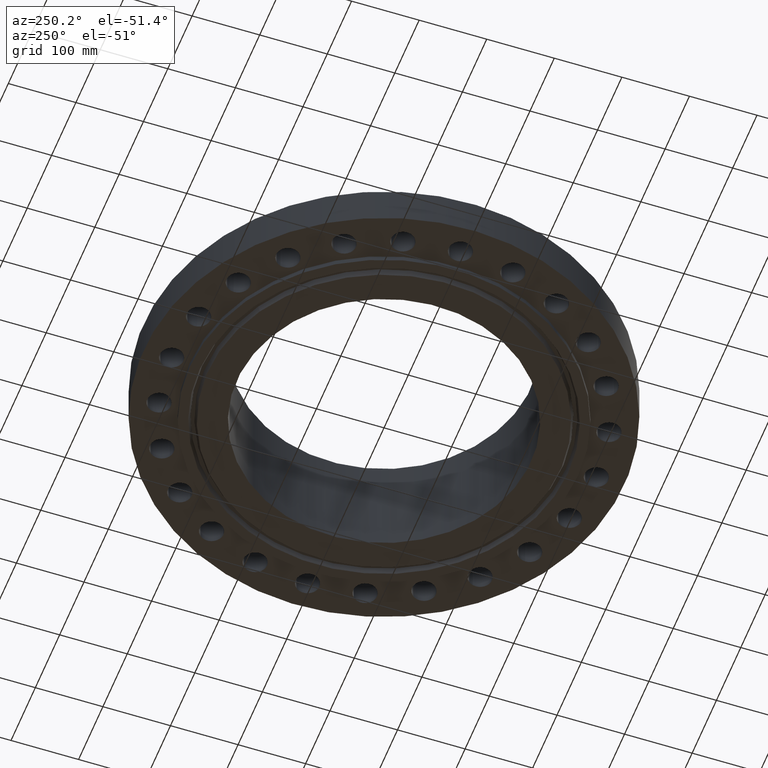
[diagram: clean part render]
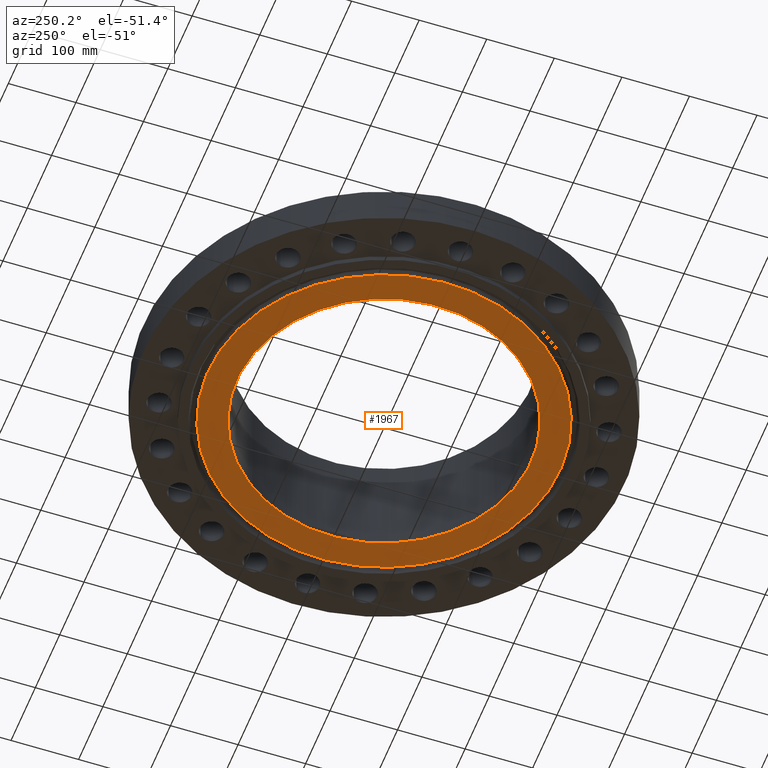
[diagram: same view with one face highlighted and labeled with its STEP entity id]
A machine part, auxiliary view. The second image highlights one B-rep face of the part: STEP entity #1967.
In plain terms, the highlighted planar face has unit normal (0, 0, -1).
Its self-contained STEP definition (entity closure, byte-faithful):
#378=AXIS2_PLACEMENT_3D('Circle Axis2P3D',#376,#377,$) ;
#402=AXIS2_PLACEMENT_3D('Circle Axis2P3D',#400,#401,$) ;
#1920=AXIS2_PLACEMENT_3D('Plane Axis2P3D',#1917,#1918,#1919) ;
#1947=AXIS2_PLACEMENT_3D('Circle Axis2P3D',#1945,#1946,$) ;
#1956=AXIS2_PLACEMENT_3D('Circle Axis2P3D',#1954,#1955,$) ;
#373=CARTESIAN_POINT('Vertex',(4.10484146155,7.51386189494,-0.313000000001)) ;
#376=CARTESIAN_POINT('Axis2P3D Location',(0.,0.,-0.313000000001)) ;
#380=CARTESIAN_POINT('Vertex',(-4.10484146155,-7.51386189494,-0.313000000001)) ;
#400=CARTESIAN_POINT('Axis2P3D Location',(0.,0.,-0.313000000001)) ;
#1917=CARTESIAN_POINT('Axis2P3D Location',(0.,8.56200000003,-0.313000000001)) ;
#1945=CARTESIAN_POINT('Axis2P3D Location',(4.47585975282E-015,-2.23792987641E-015,-0.313000000001)) ;
#1949=CARTESIAN_POINT('Vertex',(-4.92154286656,9.00882378912,-0.313000000001)) ;
#1951=CARTESIAN_POINT('Vertex',(4.92154286656,-9.00882378912,-0.313000000001)) ;
#1954=CARTESIAN_POINT('Axis2P3D Location',(-3.35689481461E-015,1.1189649382E-015,-0.313000000001)) ;
#377=DIRECTION('Axis2P3D Direction',(0.,0.,-0.0393700787402)) ;
#401=DIRECTION('Axis2P3D Direction',(0.,0.,-0.0393700787402)) ;
#1918=DIRECTION('Axis2P3D Direction',(0.,0.,-0.0393700787402)) ;
#1919=DIRECTION('Axis2P3D XDirection',(0.0393700787402,0.,0.)) ;
#1946=DIRECTION('Axis2P3D Direction',(0.,0.,-0.0393700787402)) ;
#1955=DIRECTION('Axis2P3D Direction',(0.,0.,-0.0393700787402)) ;
#1960=ORIENTED_EDGE('',*,*,#1953,.T.) ;
#1961=ORIENTED_EDGE('',*,*,#1958,.T.) ;
#1964=ORIENTED_EDGE('',*,*,#382,.F.) ;
#1965=ORIENTED_EDGE('',*,*,#404,.F.) ;
#1966=FACE_BOUND('',#1963,.T.) ;
#1967=ADVANCED_FACE('PartBody',(#1962,#1966),#1921,.T.) ;
#379=CIRCLE('generated circle',#378,8.56200000003) ;
#403=CIRCLE('generated circle',#402,8.56200000003) ;
#1948=CIRCLE('generated circle',#1947,10.2655) ;
#1957=CIRCLE('generated circle',#1956,10.2655) ;
#382=EDGE_CURVE('',#374,#381,#379,.T.) ;
#404=EDGE_CURVE('',#381,#374,#403,.T.) ;
#1953=EDGE_CURVE('',#1950,#1952,#1948,.T.) ;
#1958=EDGE_CURVE('',#1952,#1950,#1957,.T.) ;
#1959=EDGE_LOOP('',(#1960,#1961)) ;
#1963=EDGE_LOOP('',(#1964,#1965)) ;
#1962=FACE_OUTER_BOUND('',#1959,.T.) ;
#1921=PLANE('',#1920) ;
#374=VERTEX_POINT('',#373) ;
#381=VERTEX_POINT('',#380) ;
#1950=VERTEX_POINT('',#1949) ;
#1952=VERTEX_POINT('',#1951) ;